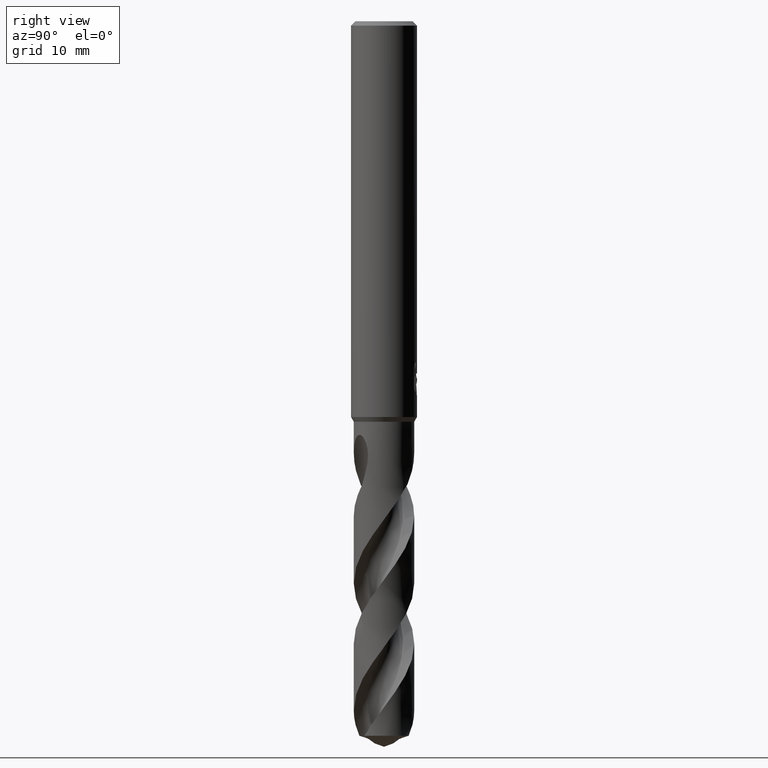
[diagram: clean part render]
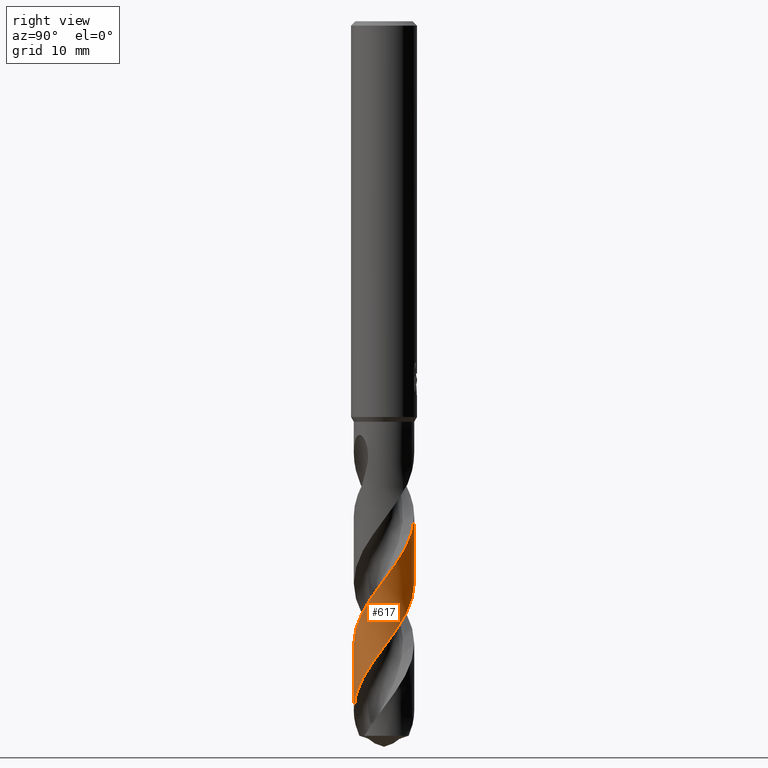
[diagram: same view with one face highlighted and labeled with its STEP entity id]
A machine part, right view. The second image highlights one B-rep face of the part: STEP entity #617.
In plain terms, the highlighted conical surface has half-angle 0 deg.
Its self-contained STEP definition (entity closure, byte-faithful):
#329=EDGE_CURVE('',#369,#343,#822,.T.);
#343=VERTEX_POINT('',#836);
#369=VERTEX_POINT('',#866);
#459=EDGE_CURVE('',#729,#671,#965,.T.);
#617=ADVANCED_FACE('',(#1139),#1140,.T.);
#645=EDGE_CURVE('',#729,#343,#1170,.T.);
#649=EDGE_CURVE('',#369,#671,#1175,.T.);
#671=VERTEX_POINT('',#1199);
#729=VERTEX_POINT('',#1263);
#822=LINE('',#1608,#1609);
#836=CARTESIAN_POINT('',(3.60250679552245E-014,2.74994860415838,-51.1226765062267));
#866=CARTESIAN_POINT('',(8.91118842908272E-013,2.74992595603699,-45.0078916704295));
#965=LINE('',#2147,#2148);
#1139=FACE_OUTER_BOUND('',#4007,.T.);
#1140=CONICAL_SURFACE('',#4008,2.74995,3.7038296536884E-006);
#1170=B_SPLINE_CURVE_WITH_KNOTS('',3,(#4658,#4659,#4660,#4661,#4662,#4663,#4664,#4665,#4666,#4667,#4668,#4669,#4670,#4671,#4672,#4673,#4674,#4675,#4676,#4677,#4678,#4679,#4680,#4681,#4682,#4683,#4684,#4685,#4686,#4687,#4688,#4689,#4690,#4691,#4692,#4693,#4694,#4695,#4696,#4697,#4698,#4699,#4700,#4701,#4702,#4703,#4704,#4705,#4706,#4707,#4708,#4709,#4710,#4711,#4712,#4713,#4714,#4715,#4716,#4717,#4718,#4719,#4720,#4721,#4722,#4723,#4724,#4725,#4726,#4727,#4728,#4729,#4730,#4731,#4732,#4733,#4734,#4735),.UNSPECIFIED.,.F.,.F.,(4,2,2,2,2,2,2,2,2,2,2,2,2,2,2,2,2,2,2,2,2,2,2,2,2,2,2,2,2,2,2,2,2,2,2,2,2,2,4),(0.0,2.23334364481786,2.88757533954439,3.63709602032514,4.0887305163426,4.54160745854208,6.01943465902045,6.33043083552578,7.22936523773277,8.73992754045959,9.74792383741834,10.3223829780152,11.2219233362998,11.6288142463564,12.2440667998687,12.9943454023847,14.256818268341,15.165483136105,16.2322373578886,17.1661942300999,17.741452175151,18.6154432608509,20.143692326934,20.5778176111028,21.9018913722422,22.6520790803416,23.6171725617236,23.9033386653937,24.0467161838681,25.1063524698582,26.6712626725996,26.7809116166663,27.1622339318669,27.5930178526914,27.8073046295581,27.8938671140233,27.999036329604,28.2015133525628,28.6002426342351),.UNSPECIFIED.);
#1175=B_SPLINE_CURVE_WITH_KNOTS('',3,(#4741,#4742,#4743,#4744,#4745,#4746,#4747,#4748,#4749,#4750,#4751,#4752,#4753,#4754,#4755,#4756,#4757,#4758,#4759,#4760,#4761,#4762,#4763,#4764,#4765,#4766,#4767,#4768,#4769,#4770,#4771,#4772,#4773,#4774,#4775,#4776,#4777,#4778,#4779,#4780,#4781,#4782,#4783,#4784,#4785,#4786,#4787,#4788,#4789,#4790,#4791,#4792,#4793,#4794,#4795,#4796,#4797,#4798,#4799,#4800,#4801,#4802,#4803,#4804,#4805,#4806,#4807,#4808,#4809,#4810,#4811,#4812,#4813,#4814,#4815,#4816,#4817,#4818,#4819,#4820,#4821,#4822,#4823,#4824,#4825,#4826,#4827,#4828,#4829,#4830),.UNSPECIFIED.,.F.,.F.,(4,2,2,2,2,2,2,2,2,2,2,2,2,2,2,2,2,2,2,2,2,2,2,2,2,2,2,2,2,2,2,2,2,2,2,2,2,2,2,2,2,2,2,2,4),(0.0,0.109925325970472,0.174071684371779,0.220728013023497,0.514215725260167,0.61803028209261,0.684835566803582,0.747831602800712,0.832652656979376,0.882864318415192,1.02299528916193,1.34048441531906,1.57166276188364,1.82734670475802,1.90572238369415,2.65463402826366,2.99138441186606,4.49217827351991,4.86130032925893,5.23348598313614,5.9716031160901,6.70999035893627,8.19272261143653,8.9365797915457,9.70419588282286,10.4420279766017,11.9240311011579,12.6685739400973,13.4360909932208,14.1747665704898,15.6530828590318,16.0256444874366,17.5034735965259,18.2484653366479,18.6313793863283,20.1795319682646,20.4536959795185,21.9987129587861,22.385339224834,23.5355565002044,24.7099390968762,25.5997565958453,26.2631418485783,27.2699514052257,28.2813581002935),.UNSPECIFIED.);
#1199=CARTESIAN_POINT('',(-2.55886151210496E-014,-2.74996892866309,-56.6101061703456));
#1263=CARTESIAN_POINT('',(8.60625542394148E-015,-2.74999157326682,-62.7239412675964));
#1608=CARTESIAN_POINT('',(-3.36405466046862E-016,2.74995,-51.499540927884));
#1609=VECTOR('',#5191,1.0);
#2147=CARTESIAN_POINT('',(3.37115782491907E-016,-2.74995,-51.499540927884));
#2148=VECTOR('',#5372,1.0);
#4007=EDGE_LOOP('',(#5569,#5570,#5571,#5572));
#4008=AXIS2_PLACEMENT_3D('',#5573,#5574,#5575);
#4658=CARTESIAN_POINT('',(-1.588386493325,-2.24488938431779,-64.9990818557679));
#4659=CARTESIAN_POINT('',(-1.22642520089388,-2.50099480364704,-64.401087971686));
#4660=CARTESIAN_POINT('',(-0.808108711882223,-2.6656506191675,-63.8193794022418));
#4661=CARTESIAN_POINT('',(-0.240508013105071,-2.74252757922883,-63.0487604445984));
#4662=CARTESIAN_POINT('',(-0.110993221274945,-2.75082001181539,-62.8732051739279));
#4663=CARTESIAN_POINT('',(0.167716257050443,-2.7489028862982,-62.4983844099941));
#4664=CARTESIAN_POINT('',(0.316375707450948,-2.73580155274771,-62.2993374275192));
#4665=CARTESIAN_POINT('',(0.55204826377029,-2.69550792575032,-61.9791311471439));
#4666=CARTESIAN_POINT('',(0.639752471308692,-2.67604062277907,-61.8588849992547));
#4667=CARTESIAN_POINT('',(0.812962260780778,-2.62861339553562,-61.6174172358451));
#4668=CARTESIAN_POINT('',(0.898306907133896,-2.60067762845215,-61.4960770714818));
#4669=CARTESIAN_POINT('',(1.25560056122022,-2.46406450185335,-60.9808838593297));
#4670=CARTESIAN_POINT('',(1.51049103850198,-2.31656624579825,-60.5940324092746));
#4671=CARTESIAN_POINT('',(1.78509133167901,-2.09275957607799,-60.1171189592264));
#4672=CARTESIAN_POINT('',(1.83141221310412,-2.05233917547423,-60.0340027227338));
#4673=CARTESIAN_POINT('',(2.00600243048692,-1.88939872712192,-59.7118346192019));
#4674=CARTESIAN_POINT('',(2.12398264709657,-1.75580945138032,-59.4742636849317));
#4675=CARTESIAN_POINT('',(2.40397282647426,-1.36858741518765,-58.8346345423664));
#4676=CARTESIAN_POINT('',(2.53857488861583,-1.0989337004469,-58.4323570452727));
#4677=CARTESIAN_POINT('',(2.68614255486168,-0.622022089085554,-57.7632027530331));
#4678=CARTESIAN_POINT('',(2.7241464811857,-0.42552751058706,-57.4976588369024));
#4679=CARTESIAN_POINT('',(2.74996078789876,-0.113791671583669,-57.0766648226147));
#4680=CARTESIAN_POINT('',(2.75232165368931,-0.000121013683960086,-56.9230434137724));
#4681=CARTESIAN_POINT('',(2.74027044173569,0.291499660358706,-56.5306839341049));
#4682=CARTESIAN_POINT('',(2.71563899247453,0.468489229980983,-56.293022892581));
#4683=CARTESIAN_POINT('',(2.65511985692949,0.720535715523552,-55.9457741669793));
#4684=CARTESIAN_POINT('',(2.63285268969319,0.7980458332633,-55.8377024679147));
#4685=CARTESIAN_POINT('',(2.56857100483054,0.989727202605858,-55.5655452900578));
#4686=CARTESIAN_POINT('',(2.52220651330521,1.10257485233364,-55.4007975274514));
#4687=CARTESIAN_POINT('',(2.40282042222851,1.3456959759637,-55.0369257099273));
#4688=CARTESIAN_POINT('',(2.32643088567726,1.47385470087558,-54.8380642415342));
#4689=CARTESIAN_POINT('',(2.09436477718114,1.79968749515787,-54.3024340593766));
#4690=CARTESIAN_POINT('',(1.92169868332073,1.98296728819609,-53.9646963826047));
#4691=CARTESIAN_POINT('',(1.58624342235935,2.25358232179656,-53.3865573253366));
#4692=CARTESIAN_POINT('',(1.43509842045679,2.35271128127262,-53.1463637915785));
#4693=CARTESIAN_POINT('',(1.08788042299588,2.53447341354741,-52.6202982590416));
#4694=CARTESIAN_POINT('',(0.889657451363668,2.61068285565034,-52.3346036302354));
#4695=CARTESIAN_POINT('',(0.504690283699692,2.7096025474787,-51.8019226293908));
#4696=CARTESIAN_POINT('',(0.320968262438748,2.73742049815191,-51.5550822037422));
#4697=CARTESIAN_POINT('',(0.0222097445754342,2.75222168766575,-51.152810681053));
#4698=CARTESIAN_POINT('',(-0.0917422285298892,2.75078097637106,-50.9987842590132));
#4699=CARTESIAN_POINT('',(-0.378160146129357,2.7293230753842,-50.6124467769092));
#4700=CARTESIAN_POINT('',(-0.549484724198001,2.70007956265258,-50.3811128409002));
#4701=CARTESIAN_POINT('',(-1.01031055809605,2.57559320249484,-49.7418750222641));
#4702=CARTESIAN_POINT('',(-1.2882312629699,2.4484424130981,-49.3337842728654));
#4703=CARTESIAN_POINT('',(-1.61132199743601,2.2300793752158,-48.811679316703));
#4704=CARTESIAN_POINT('',(-1.68046486810631,2.17844886765543,-48.6963579544507));
#4705=CARTESIAN_POINT('',(-1.95012672568541,1.95660819716463,-48.2284361741637));
#4706=CARTESIAN_POINT('',(-2.12809552141807,1.76140500300571,-47.8740754272006));
#4707=CARTESIAN_POINT('',(-2.35941281906143,1.42039452732476,-47.3221074091583));
#4708=CARTESIAN_POINT('',(-2.43287478198784,1.29051423810523,-47.1234308751497));
#4709=CARTESIAN_POINT('',(-2.57591571262164,0.981568959124579,-46.6668221474434));
#4710=CARTESIAN_POINT('',(-2.63795953928501,0.799936414383771,-46.4089618003923));
#4711=CARTESIAN_POINT('',(-2.69329383642388,0.558123134388813,-46.07581080378));
#4712=CARTESIAN_POINT('',(-2.70423182519915,0.502453042769164,-45.9996664190444));
#4713=CARTESIAN_POINT('',(-2.71805224842138,0.418461334284687,-45.8852731921887));
#4714=CARTESIAN_POINT('',(-2.72223204352892,0.390346910869729,-45.8470658780304));
#4715=CARTESIAN_POINT('',(-2.75364483285151,0.153898293028401,-45.5266291681468));
#4716=CARTESIAN_POINT('',(-2.75736750663108,-0.0569873096270829,-45.2456323196488));
#4717=CARTESIAN_POINT('',(-2.7069243645179,-0.575414474895677,-44.5467745262761));
#4718=CARTESIAN_POINT('',(-2.62440789255387,-0.88021536455162,-44.1206893218189));
#4719=CARTESIAN_POINT('',(-2.48066035386644,-1.18696330758311,-43.6772105510049));
#4720=CARTESIAN_POINT('',(-2.47126100855728,-1.20640491454273,-43.6490862187805));
#4721=CARTESIAN_POINT('',(-2.42758359772823,-1.29409810049919,-43.5208443667185));
#4722=CARTESIAN_POINT('',(-2.39133544553543,-1.35978692294744,-43.4211660447976));
#4723=CARTESIAN_POINT('',(-2.31001549041508,-1.49426703157026,-43.205594467276));
#4724=CARTESIAN_POINT('',(-2.26490687880592,-1.56153857775596,-43.0905672977217));
#4725=CARTESIAN_POINT('',(-2.19550821675353,-1.65629589359613,-42.9140869357896));
#4726=CARTESIAN_POINT('',(-2.17811642557631,-1.67923999807686,-42.8685987504916));
#4727=CARTESIAN_POINT('',(-2.13908736396576,-1.72820056026755,-42.7794445033341));
#4728=CARTESIAN_POINT('',(-2.12752690350382,-1.74241908200873,-42.7540393745643));
#4729=CARTESIAN_POINT('',(-2.10112506425978,-1.77421336314407,-42.6982525239956));
#4730=CARTESIAN_POINT('',(-2.08613940045036,-1.79182156999612,-42.6680316074273));
#4731=CARTESIAN_POINT('',(-2.04070668785115,-1.84380699641511,-42.5806131981099));
#4732=CARTESIAN_POINT('',(-2.00892381499976,-1.87846726976458,-42.5245974770338));
#4733=CARTESIAN_POINT('',(-1.90829929233223,-1.98232974756612,-42.3619470895323));
#4734=CARTESIAN_POINT('',(-1.83433473071543,-2.05148209412688,-42.2604059989628));
#4735=CARTESIAN_POINT('',(-1.75231658101446,-2.11929738635034,-42.163));
#4741=CARTESIAN_POINT('',(-1.91140287521035,1.97701134557372,-42.163));
#4742=CARTESIAN_POINT('',(-1.89636457003047,1.99155074932589,-42.1930844613498));
#4743=CARTESIAN_POINT('',(-1.88112198201996,2.00595629380797,-42.2231490291945));
#4744=CARTESIAN_POINT('',(-1.85659381182716,2.02860735377726,-42.2706918452948));
#4745=CARTESIAN_POINT('',(-1.84748048382925,2.03691098694211,-42.2881798373053));
#4746=CARTESIAN_POINT('',(-1.83158255510777,2.05120070645629,-42.3183598996713));
#4747=CARTESIAN_POINT('',(-1.82484621173529,2.05719622937236,-42.3310487667797));
#4748=CARTESIAN_POINT('',(-1.775379788593,2.10078628171245,-42.4234778363526));
#4749=CARTESIAN_POINT('',(-1.73166226868664,2.137010257024,-42.5010729564301));
#4750=CARTESIAN_POINT('',(-1.66905878211312,2.18556977187503,-42.6069790416795));
#4751=CARTESIAN_POINT('',(-1.65250907781148,2.19811138032971,-42.6345271482726));
#4752=CARTESIAN_POINT('',(-1.62493968197997,2.21851227159432,-42.679780334691));
#4753=CARTESIAN_POINT('',(-1.61406956283824,2.22643365275851,-42.6974645385015));
#4754=CARTESIAN_POINT('',(-1.59279198961235,2.2417006077703,-42.7318126520639));
#4755=CARTESIAN_POINT('',(-1.58240417677942,2.24904557436085,-42.7484600217616));
#4756=CARTESIAN_POINT('',(-1.55788159294275,2.26613031375558,-42.7875205376095));
#4757=CARTESIAN_POINT('',(-1.54371408094521,2.27580518933581,-42.8099033370303));
#4758=CARTESIAN_POINT('',(-1.5210122641625,2.29099838211852,-42.8455620950362));
#4759=CARTESIAN_POINT('',(-1.51254321168376,2.29659857287742,-42.8588196259531));
#4760=CARTESIAN_POINT('',(-1.48033748345923,2.31763954542649,-42.9091087842508));
#4761=CARTESIAN_POINT('',(-1.45661492527251,2.3326224529928,-42.9459575624256));
#4762=CARTESIAN_POINT('',(-1.37758240213292,2.38084984808062,-43.0685823237904));
#4763=CARTESIAN_POINT('',(-1.32187351632021,2.41220654139971,-43.1544660021893));
#4764=CARTESIAN_POINT('',(-1.22441362283363,2.46272382521161,-43.3026195692733));
#4765=CARTESIAN_POINT('',(-1.18284019714064,2.48295871589845,-43.3651885367992));
#4766=CARTESIAN_POINT('',(-1.09428595696689,2.52333362881594,-43.4967827943537));
#4767=CARTESIAN_POINT('',(-1.04710409542457,2.54327954311241,-43.5659301219481));
#4768=CARTESIAN_POINT('',(-0.984628505771995,2.56764862665646,-43.6560490131853));
#4769=CARTESIAN_POINT('',(-0.969905117585221,2.5732464881548,-43.6771861395696));
#4770=CARTESIAN_POINT('',(-0.814100265504802,2.63095681158565,-43.900120080061));
#4771=CARTESIAN_POINT('',(-0.669036169019795,2.67152979342709,-44.1006980614702));
#4772=CARTESIAN_POINT('',(-0.455028052834348,2.71285836069892,-44.3933319887382));
#4773=CARTESIAN_POINT('',(-0.388255350490416,2.72321404307501,-44.4842295909587));
#4774=CARTESIAN_POINT('',(-0.0225066368692584,2.76623473026081,-44.97973115181));
#4775=CARTESIAN_POINT('',(0.280123605309374,2.75214369393323,-45.3804769081861));
#4776=CARTESIAN_POINT('',(0.647004511854975,2.67375769537315,-45.8843836978135));
#4777=CARTESIAN_POINT('',(0.7187701855837,2.65536550146777,-45.9838473898175));
#4778=CARTESIAN_POINT('',(0.861227187944194,2.61265759966224,-46.1836202096763));
#4779=CARTESIAN_POINT('',(0.931859101683369,2.5883076460746,-46.2838679336881));
#4780=CARTESIAN_POINT('',(1.13938423911511,2.50716401111449,-46.5830231368247));
#4781=CARTESIAN_POINT('',(1.27270324413693,2.44218399627067,-46.7815011850774));
#4782=CARTESIAN_POINT('',(1.52753273917727,2.29144148835542,-47.1795201981621));
#4783=CARTESIAN_POINT('',(1.64873905578741,2.2058486513699,-47.3782842781561));
#4784=CARTESIAN_POINT('',(1.99096861749874,1.92009854390508,-47.976708689383));
#4785=CARTESIAN_POINT('',(2.18687138329692,1.69357380774148,-48.3735975213339));
#4786=CARTESIAN_POINT('',(2.4207605065461,1.31314519006749,-48.9737744630429));
#4787=CARTESIAN_POINT('',(2.48846873652418,1.17983455416703,-49.1738066570318));
#4788=CARTESIAN_POINT('',(2.60342458450725,0.898956502492211,-49.5809528200151));
#4789=CARTESIAN_POINT('',(2.64967100242803,0.751749975080283,-49.7873718940046));
#4790=CARTESIAN_POINT('',(2.71570997322698,0.457175039184686,-50.1932126430381));
#4791=CARTESIAN_POINT('',(2.73638783724151,0.310352592090023,-50.391843652317));
#4792=CARTESIAN_POINT('',(2.76272175142063,-0.134451895696318,-50.989958861839));
#4793=CARTESIAN_POINT('',(2.73199185868395,-0.432230235097019,-51.3867495522202));
#4794=CARTESIAN_POINT('',(2.61518760355462,-0.863328075145547,-51.9869022064837));
#4795=CARTESIAN_POINT('',(2.56443120982157,-1.00413314806828,-52.1870971114767));
#4796=CARTESIAN_POINT('',(2.43854450724384,-1.28042980479539,-52.5944175746012));
#4797=CARTESIAN_POINT('',(2.36301166921169,-1.41496114846683,-52.8009060405566));
#4798=CARTESIAN_POINT('',(2.19361029502875,-1.6650148767806,-53.2069588021787));
#4799=CARTESIAN_POINT('',(2.10071432630539,-1.78080073580964,-53.4057930247739));
#4800=CARTESIAN_POINT('',(1.79507266283526,-2.10429501734836,-54.0031246492357));
#4801=CARTESIAN_POINT('',(1.55773598929327,-2.28554140354092,-54.3990683456395));
#4802=CARTESIAN_POINT('',(1.23025327441459,-2.46056040379812,-54.8979516909813));
#4803=CARTESIAN_POINT('',(1.16290425490503,-2.49309922788412,-54.9983077409388));
#4804=CARTESIAN_POINT('',(0.822116496754478,-2.64091769094114,-55.4968751573586));
#4805=CARTESIAN_POINT('',(0.532691558717302,-2.71412225593719,-55.8927141299519));
#4806=CARTESIAN_POINT('',(0.0884033673186798,-2.75260801326037,-56.4918631501257));
#4807=CARTESIAN_POINT('',(-0.0613722217540818,-2.75335158476586,-56.6921623314126));
#4808=CARTESIAN_POINT('',(-0.287202433599377,-2.73601247564594,-56.996012020305));
#4809=CARTESIAN_POINT('',(-0.363548750283114,-2.72691668233331,-57.0990657277741));
#4810=CARTESIAN_POINT('',(-0.746042993720588,-2.66500778497716,-57.6196182591044));
#4811=CARTESIAN_POINT('',(-1.04228804202358,-2.56372461121696,-58.0344855482356));
#4812=CARTESIAN_POINT('',(-1.36372018612267,-2.38865395248604,-58.5255433127916));
#4813=CARTESIAN_POINT('',(-1.41125449249675,-2.36088091569734,-58.5993834385188));
#4814=CARTESIAN_POINT('',(-1.72086223567593,-2.16729881522932,-59.0898806632892));
#4815=CARTESIAN_POINT('',(-1.95429303567115,-1.95946131761123,-59.5041271073401));
#4816=CARTESIAN_POINT('',(-2.19661041712436,-1.65630177422349,-60.0247823791953));
#4817=CARTESIAN_POINT('',(-2.24248904973512,-1.59363290947307,-60.1289251414567));
#4818=CARTESIAN_POINT('',(-2.41401689118723,-1.33724802685557,-60.5434628627185));
#4819=CARTESIAN_POINT('',(-2.51779530898462,-1.1298380538863,-60.852938418161));
#4820=CARTESIAN_POINT('',(-2.67266372062889,-0.6891854008414,-61.4797095387584));
#4821=CARTESIAN_POINT('',(-2.72189413279752,-0.457505939345169,-61.7951966485796));
#4822=CARTESIAN_POINT('',(-2.75542731726011,-0.0444651425607768,-62.3520332241131));
#4823=CARTESIAN_POINT('',(-2.75250743531387,0.134663239379972,-62.5912725970459));
#4824=CARTESIAN_POINT('',(-2.71705531493682,0.444797786414119,-63.0099819111198));
#4825=CARTESIAN_POINT('',(-2.6923158120323,0.575857261222968,-63.1886047097184));
#4826=CARTESIAN_POINT('',(-2.60647560124012,0.899753597344495,-63.6393299801374));
#4827=CARTESIAN_POINT('',(-2.53333371872056,1.08886308876552,-63.9103913449603));
#4828=CARTESIAN_POINT('',(-2.34630018674396,1.44867651954782,-64.4546187863681));
#4829=CARTESIAN_POINT('',(-2.2328622665331,1.61806506319182,-64.7263599937618));
#4830=CARTESIAN_POINT('',(-2.10178621183988,1.77341329636375,-64.9990818557679));
#5191=DIRECTION('',(-4.53573332737218E-022,3.70382965367993E-006,-0.999999999993141));
#5372=DIRECTION('',(-4.53573332737218E-022,3.70382965367993E-006,0.999999999993141));
#5569=ORIENTED_EDGE('',*,*,#329,.F.);
#5570=ORIENTED_EDGE('',*,*,#649,.T.);
#5571=ORIENTED_EDGE('',*,*,#459,.F.);
#5572=ORIENTED_EDGE('',*,*,#645,.T.);
#5573=CARTESIAN_POINT('',(0.0,0.0,-51.499540927884));
#5574=DIRECTION('',(0.0,-0.0,-1.0));
#5575=DIRECTION('',(0.0,1.0,0.0));